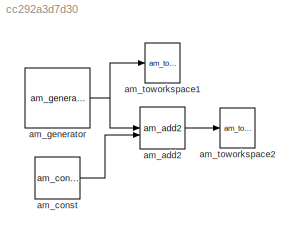
MODEL slx_cc292a3d7d30
KIND model
CONFIG AbsTol = auto
CONFIG EnableMultiTasking = off
CONFIG FixedStep = auto
CONFIG MaxStep = auto
CONFIG MinStep = auto
CONFIG RelTol = 1e-3
CONFIG SampleTimeConstraint = Unconstrained
CONFIG SolverName = VariableStepAuto
CONFIG StartTime = 0.0
CONFIG StopTime = 10.0
BLOCK [Reference] am_add2  REF=StdLib/am_add2
  SourceBlock = StdLib/am_add2
  SourceType = Add2
BLOCK [Reference] am_const  REF=StdLib/am_const
  SourceBlock = StdLib/am_const
  SourceProductName = Sources
  SourceType = Const
BLOCK [Reference] am_generator  REF=StdLib/am_generator
  SourceBlock = StdLib/am_generator
  SourceType = Generator
BLOCK [Reference] am_toworkspace1  REF=StdLib/am_toworkspace
  SourceBlock = StdLib/am_toworkspace
  SourceType = ToWorkspace
BLOCK [Reference] am_toworkspace2  REF=StdLib/am_toworkspace
  SourceBlock = StdLib/am_toworkspace
  SourceType = ToWorkspace
LINE am_add2:1 -> am_toworkspace2:1
LINE am_const:1 -> am_add2:2
NET am_generator:1 -> am_add2:1, am_toworkspace1:1
note: NET lines group one-source signal fan-out (src -> all destinations, sorted); 1:1 wires keep LINE
